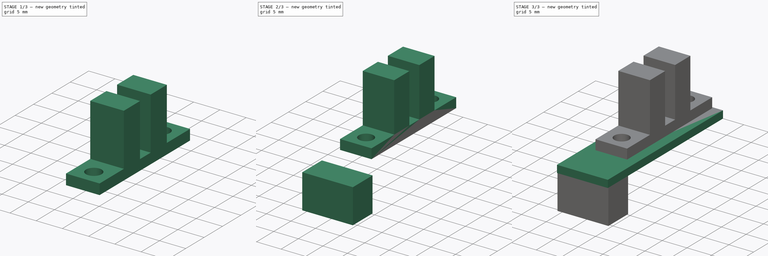
[diagram: build sequence overview — one tinted view per stage of 3, left to right]
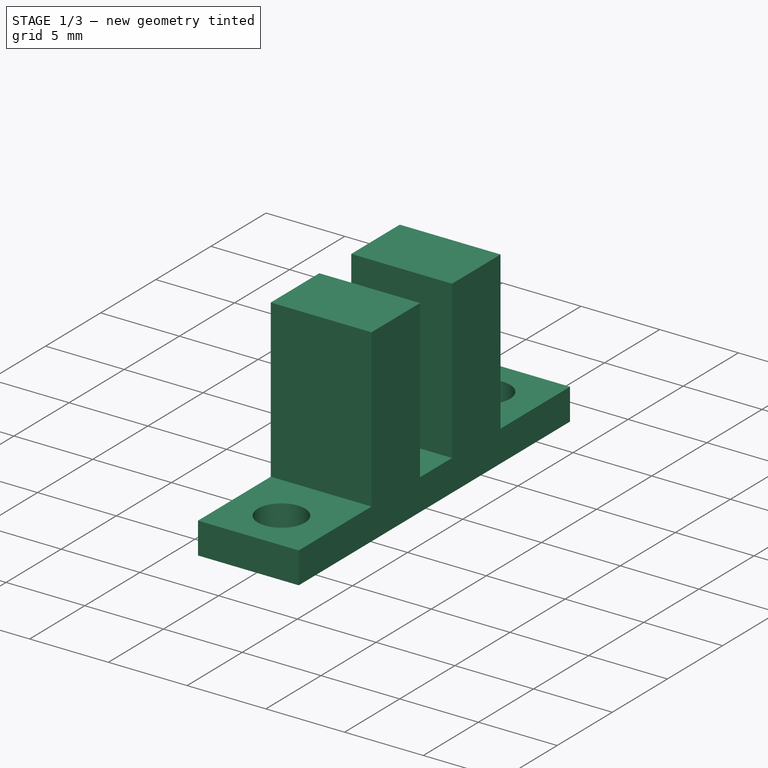
[diagram: stage 1 of 3 — iso view after this stage's code; geometry added in this stage tinted green]
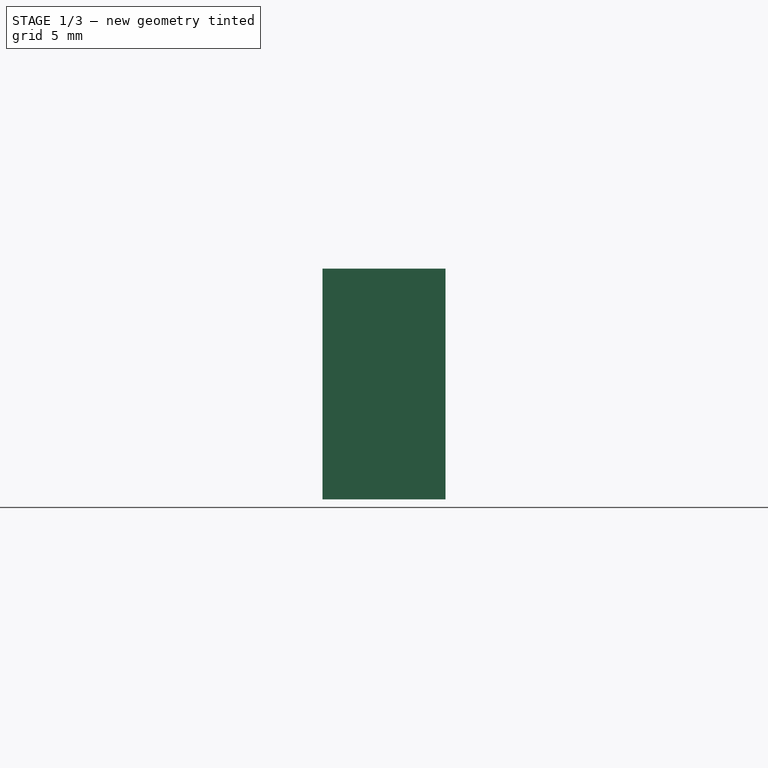
[diagram: stage 1 of 3 — front view after this stage's code; geometry added in this stage tinted green]
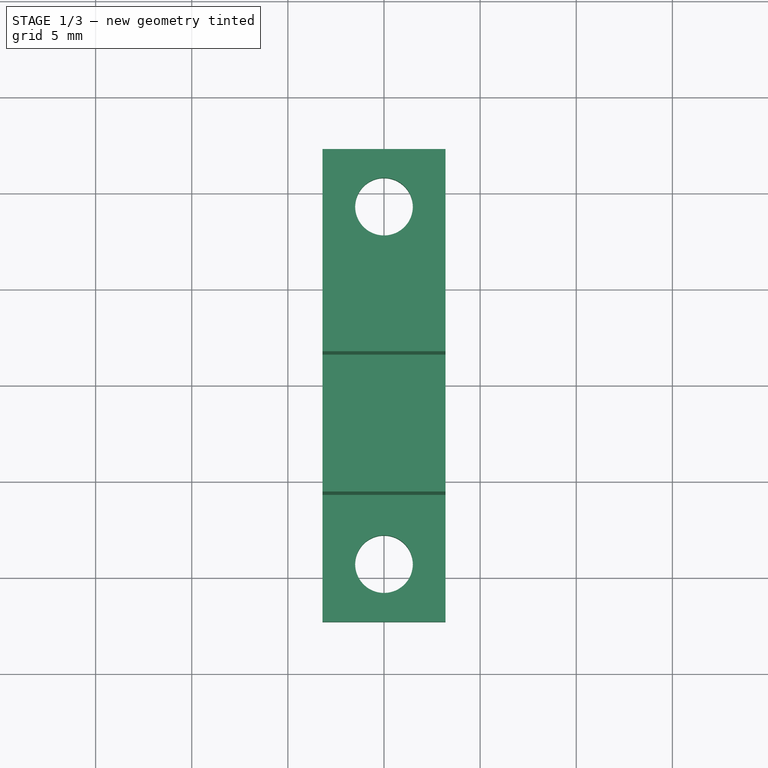
[diagram: stage 1 of 3 — top view after this stage's code; geometry added in this stage tinted green]
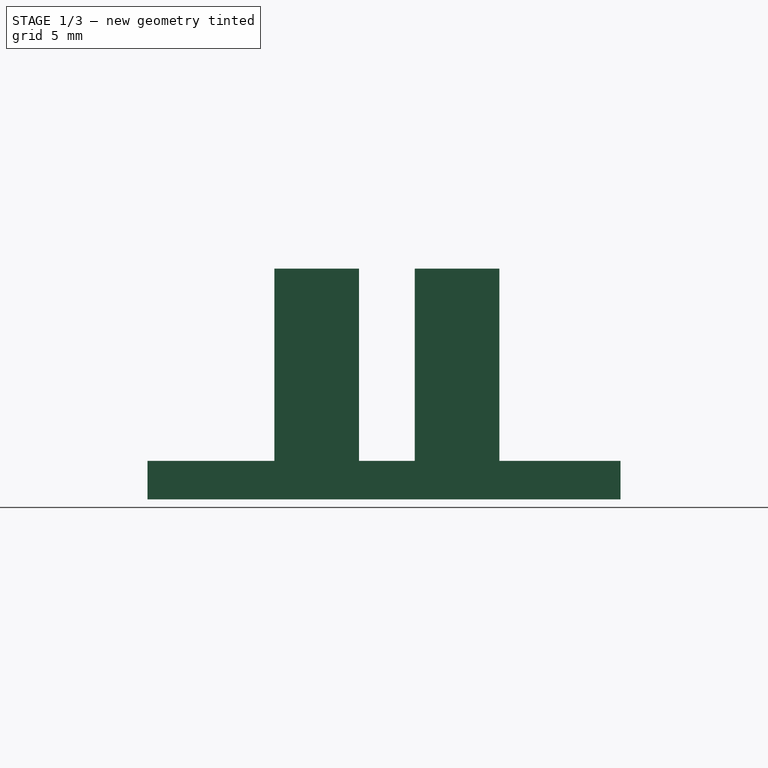
[diagram: stage 1 of 3 — right view after this stage's code; geometry added in this stage tinted green]
FCSTD DOCUMENT  (FreeCAD 0.15R4664 (Git))
Label: end-stop
License: All rights reserved
LicenseURL: http://en.wikipedia.org/wiki/All_rights_reserved
objects: Sketcher::SketchObject×3, PartDesign::Pad×3, Part::Box×1, Part::FeaturePython×1, Part::Compound×1
note: 12 computed .brp shape members not serialized (recipe doc carries the construction recipe); baked Part::Feature solids carry a one-line shape summary decoded from their .brp

FEATURE [Sketcher::SketchObject] Sketch001
  sketch-geometry (6):
    g0: LineSegment StartX=-3.2 StartY=12.3 StartZ=0 EndX=3.2 EndY=12.3 EndZ=0
    g1: LineSegment StartX=3.2 StartY=12.3 StartZ=0 EndX=3.2 EndY=-12.3 EndZ=0
    g2: LineSegment StartX=3.2 StartY=-12.3 StartZ=0 EndX=-3.2 EndY=-12.3 EndZ=0
    g3: LineSegment StartX=-3.2 StartY=-12.3 StartZ=0 EndX=-3.2 EndY=12.3 EndZ=0
    g4: Circle CenterX=0 CenterY=9.3 CenterZ=0 NormalX=0 NormalY=0 NormalZ=1 Radius=1.5
    g5: Circle CenterX=0 CenterY=-9.3 CenterZ=0 NormalX=0 NormalY=0 NormalZ=1 Radius=1.5
  constraints (16):
    c: Coincident(g0,g1)
    c: Coincident(g1,g2)
    c: Coincident(g2,g3)
    c: Coincident(g3,g0)
    c: Horizontal(g0)
    c: Horizontal(g2)
    c: Vertical(g1)
    c: Vertical(g3)
    c: DistanceX(g0) = 6.4
    c: Symmetric(g0,g1,g-1)
    c: DistanceY(g1) = -24.6
    c: PointOnObject(g4,g-2)
    c: Equal(g4,g5)
    c: Radius(g4) = 1.5
    c: Distance(g4,g0) = 3
    c: Symmetric(g4,g5,g-1)
FEATURE [PartDesign::Pad] Pad001
  Length = 2
  Length2 = 100
  Sketch = -> Sketch001
  Type = 0
FEATURE [Sketcher::SketchObject] Sketch002
  ExternalGeometry = -> [Pad001]
  Placement = pos=(0,0,2) rot=(0,0,1;0rad)
  Support = -> Pad001 [Face8]
  sketch-geometry (8):
    g0: LineSegment StartX=-3.2 StartY=6 StartZ=0 EndX=3.2 EndY=6 EndZ=0
    g1: LineSegment StartX=3.2 StartY=6 StartZ=0 EndX=3.2 EndY=1.6 EndZ=0
    g2: LineSegment StartX=3.2 StartY=1.6 StartZ=0 EndX=-3.2 EndY=1.6 EndZ=0
    g3: LineSegment StartX=-3.2 StartY=1.6 StartZ=0 EndX=-3.2 EndY=6 EndZ=0
    g4: LineSegment StartX=-3.2 StartY=-1.3 StartZ=0 EndX=3.2 EndY=-1.3 EndZ=0
    g5: LineSegment StartX=3.2 StartY=-1.3 StartZ=0 EndX=3.2 EndY=-5.7 EndZ=0
    g6: LineSegment StartX=3.2 StartY=-5.7 StartZ=0 EndX=-3.2 EndY=-5.7 EndZ=0
    g7: LineSegment StartX=-3.2 StartY=-5.7 StartZ=0 EndX=-3.2 EndY=-1.3 EndZ=0
  constraints (24):
    c: Coincident(g0,g1)
    c: Coincident(g1,g2)
    c: Coincident(g2,g3)
    c: Coincident(g3,g0)
    c: Horizontal(g0)
    c: Horizontal(g2)
    c: Vertical(g1)
    c: Vertical(g3)
    c: PointOnObject(g0,g-4)
    c: Coincident(g4,g5)
    c: Coincident(g5,g6)
    c: Coincident(g6,g7)
    c: Coincident(g7,g4)
    c: Horizontal(g4)
    c: Horizontal(g6)
    c: Vertical(g5)
    c: Vertical(g7)
    c: PointOnObject(g4,g-4)
    c: PointOnObject(g5,g-5)
    c: PointOnObject(g0,g-5)
    c: Distance(g0,g-5) = 6.3
    c: Distance(g1,g0) = 4.4
    c: Distance(g1,g4) = 2.9
    c: Distance(g4,g5) = 4.4
FEATURE [PartDesign::Pad] Pad002  label="sensor"
  Length = 10
  Length2 = 100
  Sketch = -> Sketch002
  Type = 0
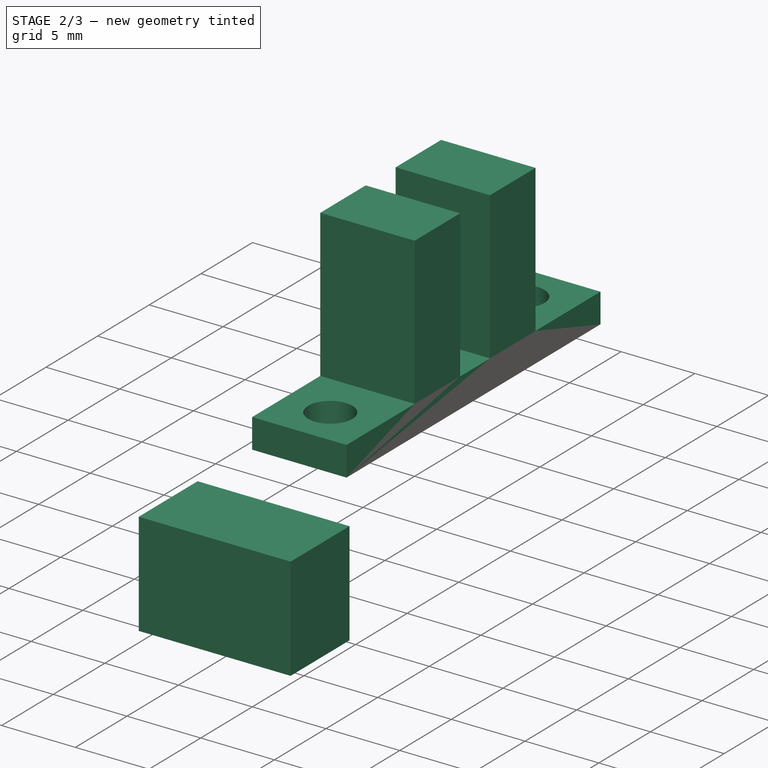
[diagram: stage 2 of 3 — iso view after this stage's code; geometry added in this stage tinted green]
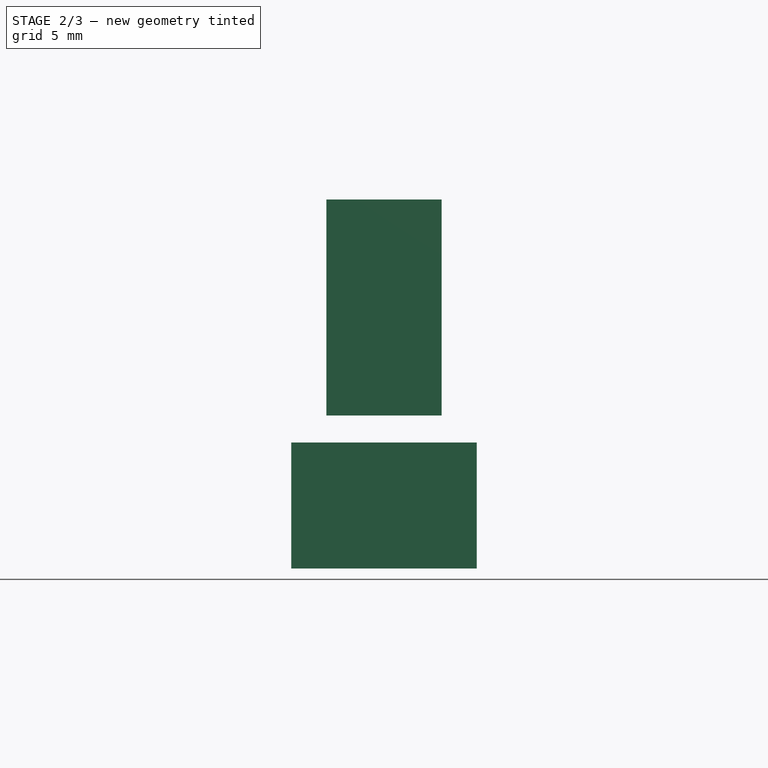
[diagram: stage 2 of 3 — front view after this stage's code; geometry added in this stage tinted green]
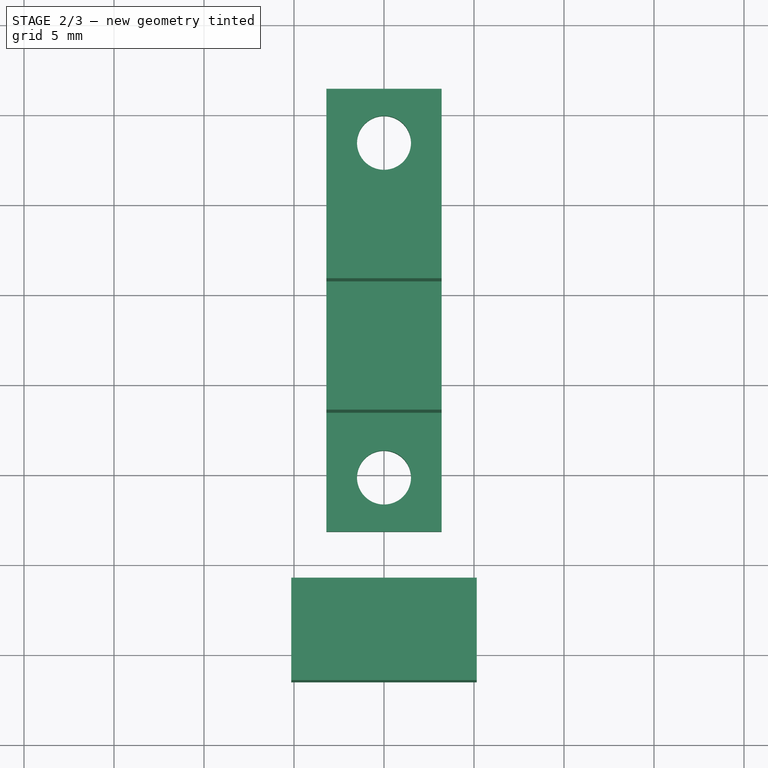
[diagram: stage 2 of 3 — top view after this stage's code; geometry added in this stage tinted green]
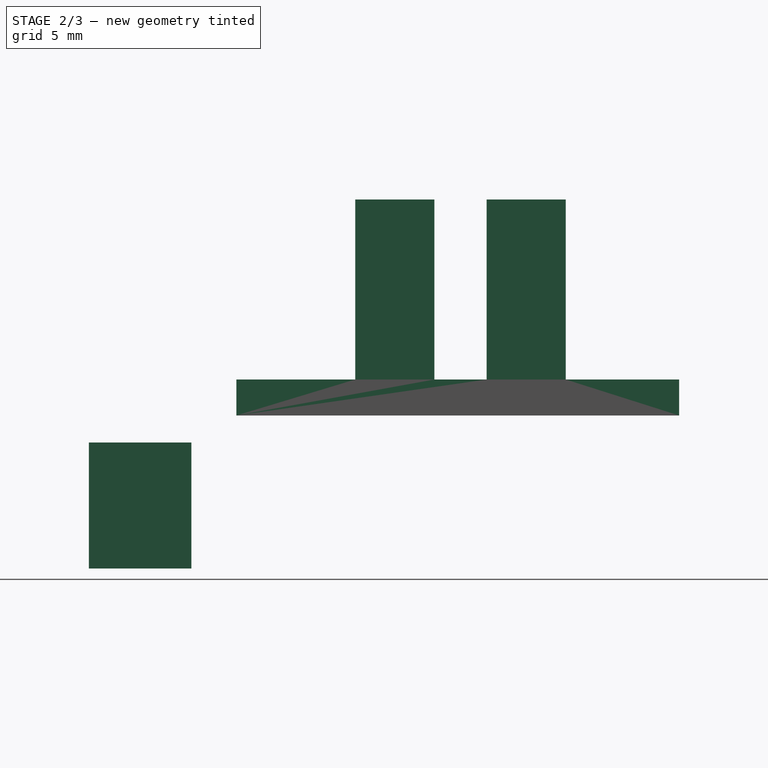
[diagram: stage 2 of 3 — right view after this stage's code; geometry added in this stage tinted green]
FEATURE [Part::Box] Box  label="conector"
  Height = 7
  Length = 10.3
  Placement = pos=(-5.15,-16.5,-7) rot=(0,0,1;0rad)
  Width = 5.7
FEATURE [Part::FeaturePython] Clone  label="Clone of sensor"  # Draft clone (typed FeaturePython)
  Objects = -> [Pad002]
  Placement = pos=(0,4,1.5) rot=(0,0,1;0rad)
  Scale = (1,1,1)
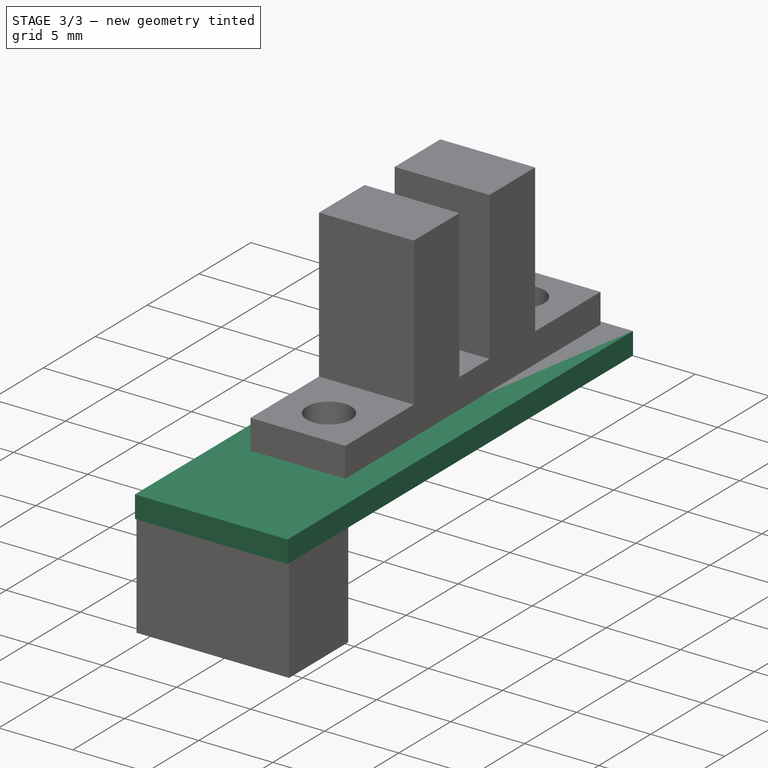
[diagram: stage 3 of 3 — iso view after this stage's code; geometry added in this stage tinted green]
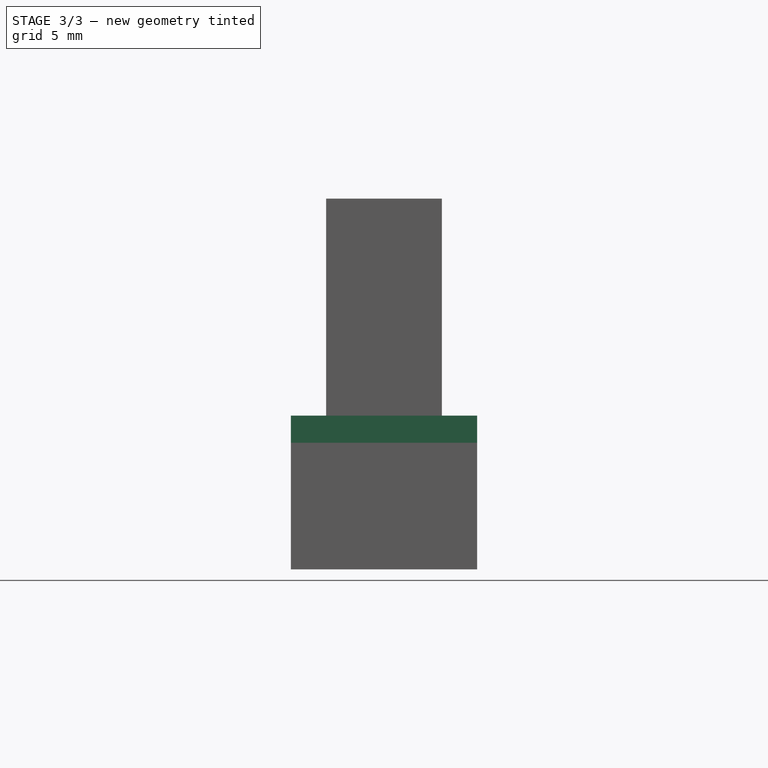
[diagram: stage 3 of 3 — front view after this stage's code; geometry added in this stage tinted green]
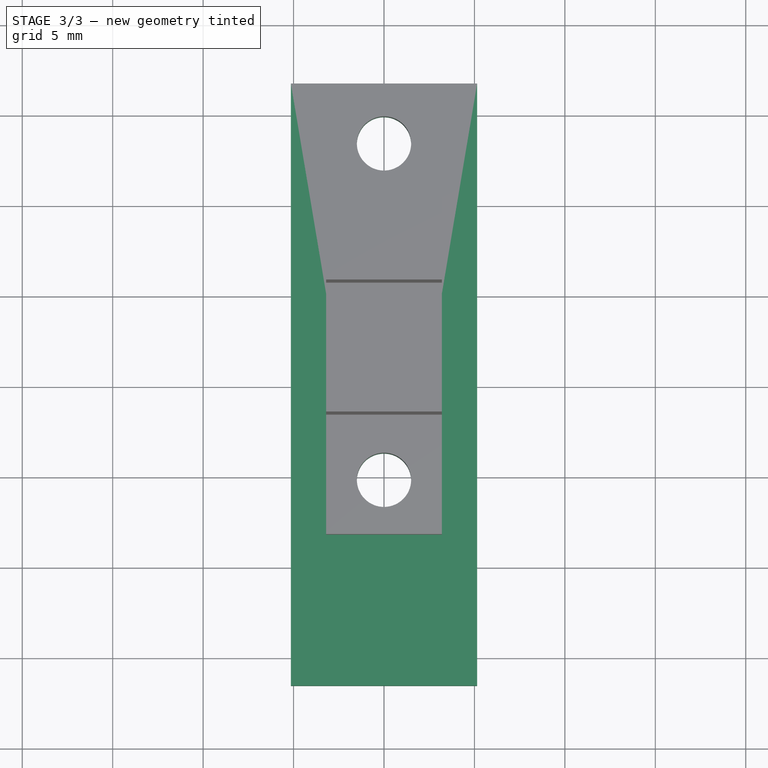
[diagram: stage 3 of 3 — top view after this stage's code; geometry added in this stage tinted green]
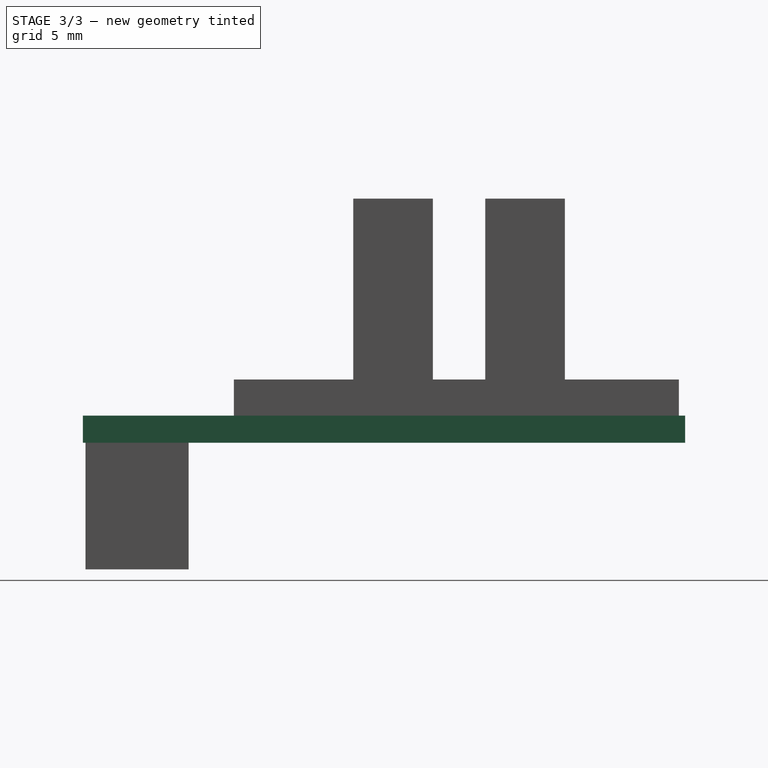
[diagram: stage 3 of 3 — right view after this stage's code; geometry added in this stage tinted green]
FEATURE [Sketcher::SketchObject] Sketch
  sketch-geometry (6):
    g0: LineSegment StartX=-5.15 StartY=16.65 StartZ=0 EndX=5.15 EndY=16.65 EndZ=0
    g1: LineSegment StartX=5.15 StartY=16.65 StartZ=0 EndX=5.15 EndY=-16.65 EndZ=0
    g2: LineSegment StartX=5.15 StartY=-16.65 StartZ=0 EndX=-5.15 EndY=-16.65 EndZ=0
    g3: LineSegment StartX=-5.15 StartY=-16.65 StartZ=0 EndX=-5.15 EndY=16.65 EndZ=0
    g4: Circle CenterX=0 CenterY=13.3 CenterZ=0 NormalX=0 NormalY=0 NormalZ=1 Radius=1.5
    g5: Circle CenterX=0 CenterY=-5.3 CenterZ=0 NormalX=0 NormalY=0 NormalZ=1 Radius=1.5
  constraints (17):
    c: Coincident(g0,g1)
    c: Coincident(g1,g2)
    c: Coincident(g2,g3)
    c: Coincident(g3,g0)
    c: Horizontal(g0)
    c: Horizontal(g2)
    c: Vertical(g1)
    c: Vertical(g3)
    c: Symmetric(g0,g1,g-1)
    c: DistanceX(g0) = 10.3
    c: DistanceY(g1) = -33.3
    c: PointOnObject(g5,g-2)
    c: Distance(g4,g0) = 3.35
    c: Radius(g4) = 1.5
    c: PointOnObject(g4,g-2)
    c: Distance(g4,g5) = 18.6
    c: Equal(g4,g5)
FEATURE [PartDesign::Pad] Pad  label="pcb"
  Length = 1.5
  Length2 = 100
  Sketch = -> Sketch
  Type = 0
FEATURE [Part::Compound] Compound  label="end-stop-final"
  Links = -> [Clone,Box,Pad]
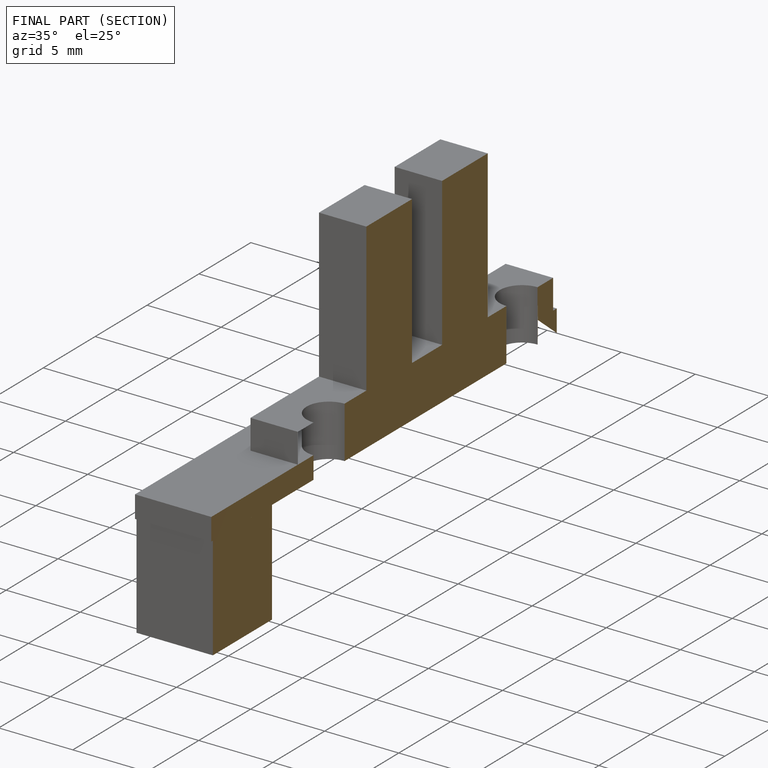
[diagram: finished part — half-section view (interior)]
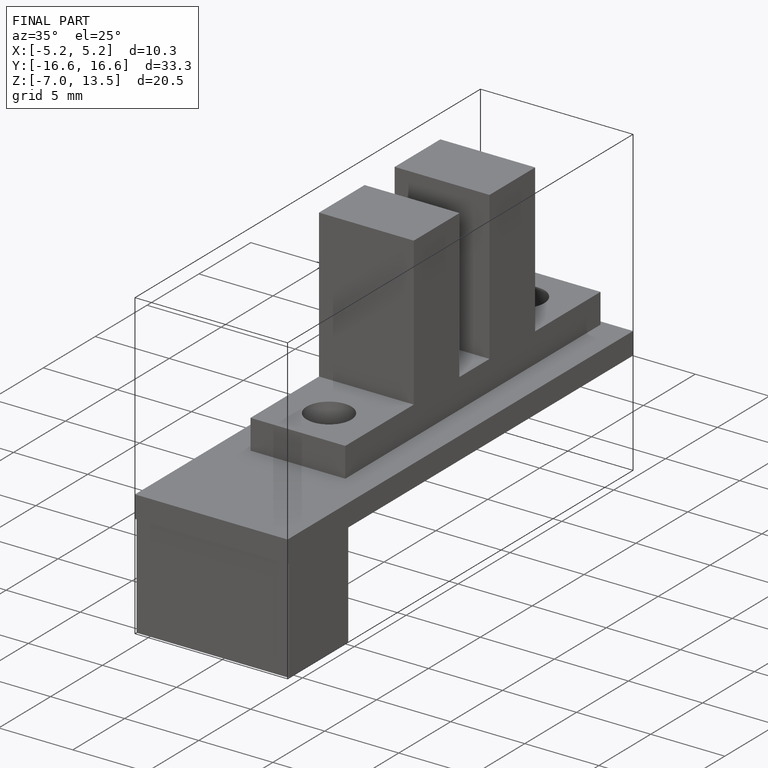
[diagram: finished part — iso view with bounding-box wireframe]
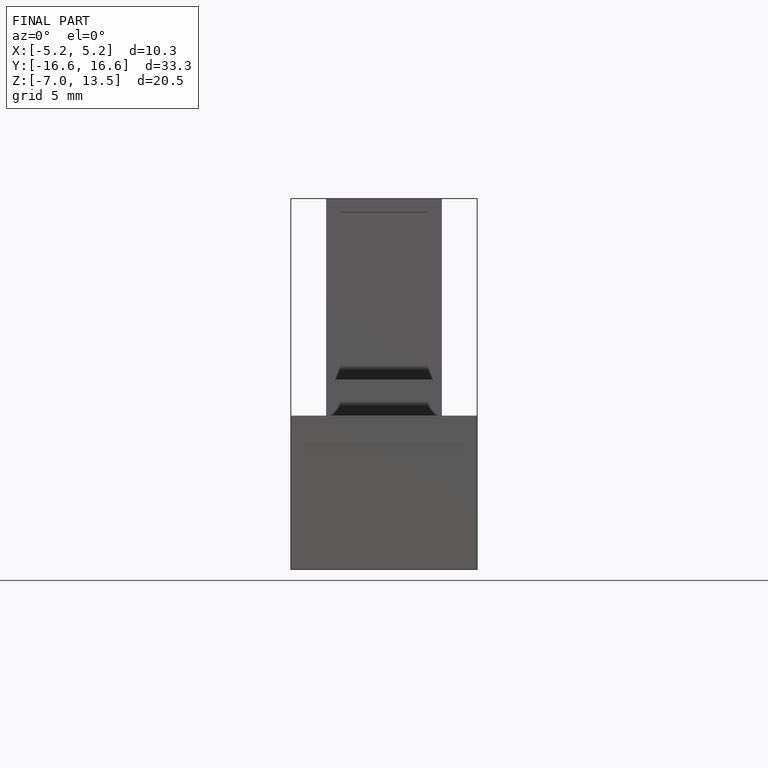
[diagram: finished part — front view with bounding-box wireframe]
